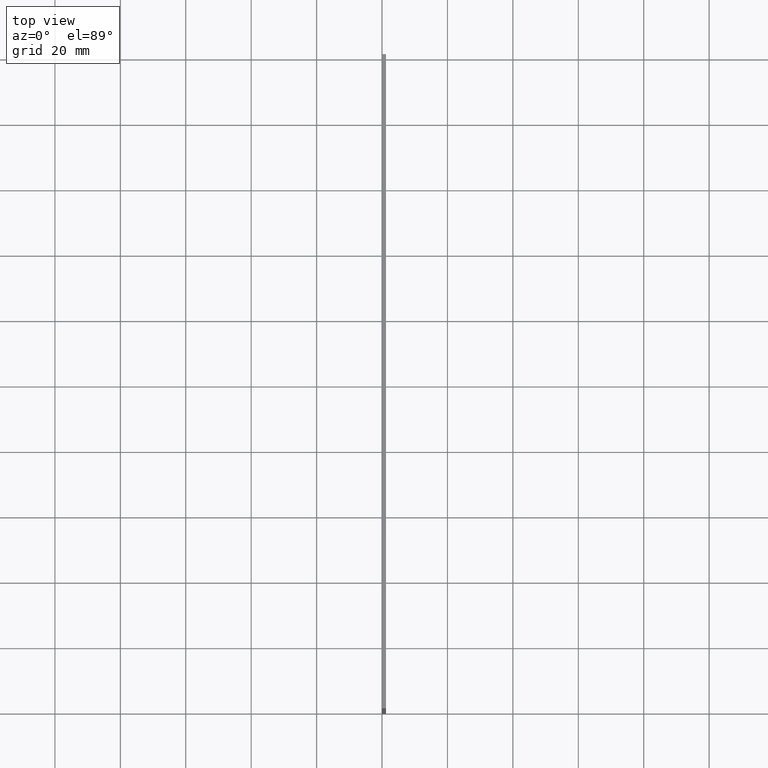
[diagram: clean part render]
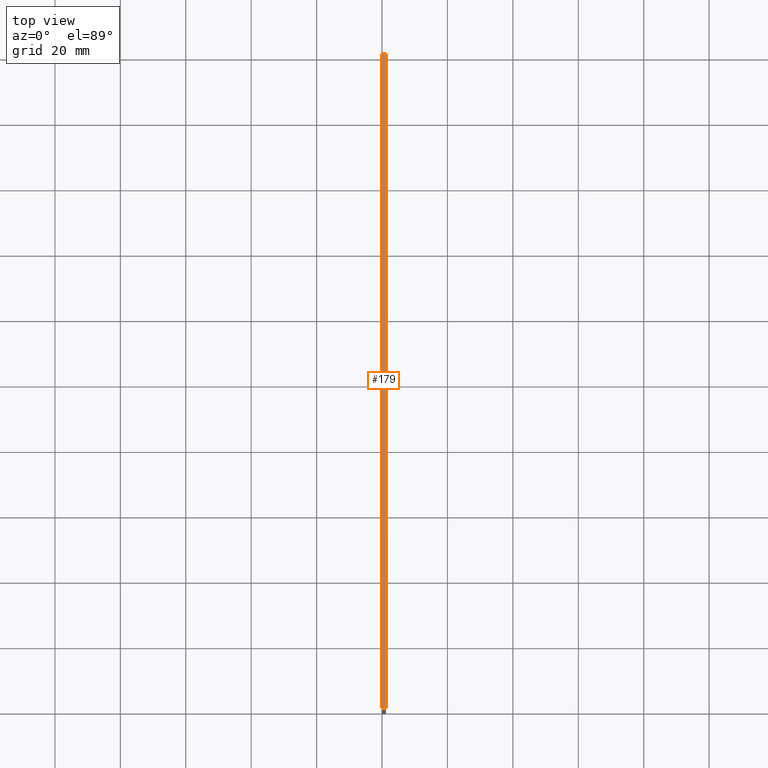
[diagram: same view with one face highlighted and labeled with its STEP entity id]
A machine part, top view. The second image highlights one B-rep face of the part: STEP entity #179.
In plain terms, the highlighted face is a freeform B-spline surface patch.
Its self-contained STEP definition (entity closure, byte-faithful):
#49=CARTESIAN_POINT('',(1.200000000000052,0.0,100.0));
#50=VERTEX_POINT('',#49);
#51=CARTESIAN_POINT('',(0.0,0.0,100.0));
#52=VERTEX_POINT('',#51);
#53=CARTESIAN_POINT('',(1.200000000000052,0.0,100.0));
#54=CARTESIAN_POINT('',(0.0,0.0,100.0));
#55=QUASI_UNIFORM_CURVE('',1,(#53,#54),.UNSPECIFIED.,.F.,.U.);
#56=EDGE_CURVE('',#50,#52,#55,.T.);
#85=CARTESIAN_POINT('',(1.200000000000052,200.0,100.0));
#86=VERTEX_POINT('',#85);
#87=CARTESIAN_POINT('',(0.0,200.0,100.0));
#88=VERTEX_POINT('',#87);
#89=CARTESIAN_POINT('',(1.200000000000052,200.0,100.0));
#90=CARTESIAN_POINT('',(0.0,200.0,100.0));
#91=QUASI_UNIFORM_CURVE('',1,(#89,#90),.UNSPECIFIED.,.F.,.U.);
#92=EDGE_CURVE('',#86,#88,#91,.T.);
#128=CARTESIAN_POINT('',(1.200000000000052,200.0,100.0));
#129=CARTESIAN_POINT('',(1.200000000000052,0.0,100.0));
#130=QUASI_UNIFORM_CURVE('',1,(#128,#129),.UNSPECIFIED.,.F.,.U.);
#131=EDGE_CURVE('',#86,#50,#130,.T.);
#158=CARTESIAN_POINT('',(0.0,200.0,100.0));
#159=CARTESIAN_POINT('',(0.0,0.0,100.0));
#160=QUASI_UNIFORM_CURVE('',1,(#158,#159),.UNSPECIFIED.,.F.,.U.);
#161=EDGE_CURVE('',#88,#52,#160,.T.);
#168=CARTESIAN_POINT('',(-0.059939997674170,-9.989999612361171,99.999999999999162));
#169=CARTESIAN_POINT('',(1.259940029860730,-9.989999612361171,100.0));
#170=CARTESIAN_POINT('',(-0.059939997674170,209.990004976779200,99.999999999999162));
#171=CARTESIAN_POINT('',(1.259940029860730,209.990004976779200,100.0));
#172=B_SPLINE_SURFACE_WITH_KNOTS('',1,1,((#168,#170),(#169,#171)),.UNSPECIFIED.,.F.,.F.,.U.,(2,2),(2,2),(0.041708334948495,0.958291687403247),(0.0,219.980004589140410),.UNSPECIFIED.);
#173=ORIENTED_EDGE('',*,*,#56,.F.);
#174=ORIENTED_EDGE('',*,*,#131,.F.);
#175=ORIENTED_EDGE('',*,*,#92,.T.);
#176=ORIENTED_EDGE('',*,*,#161,.T.);
#177=EDGE_LOOP('',(#173,#174,#175,#176));
#178=FACE_OUTER_BOUND('',#177,.T.);
#179=ADVANCED_FACE('',(#178),#172,.T.);